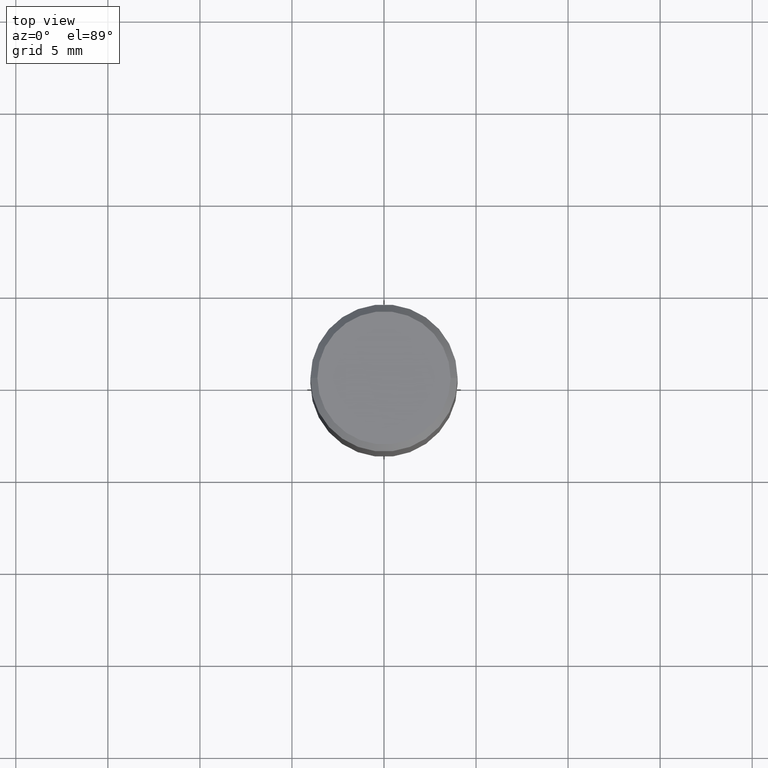
[diagram: clean part render]
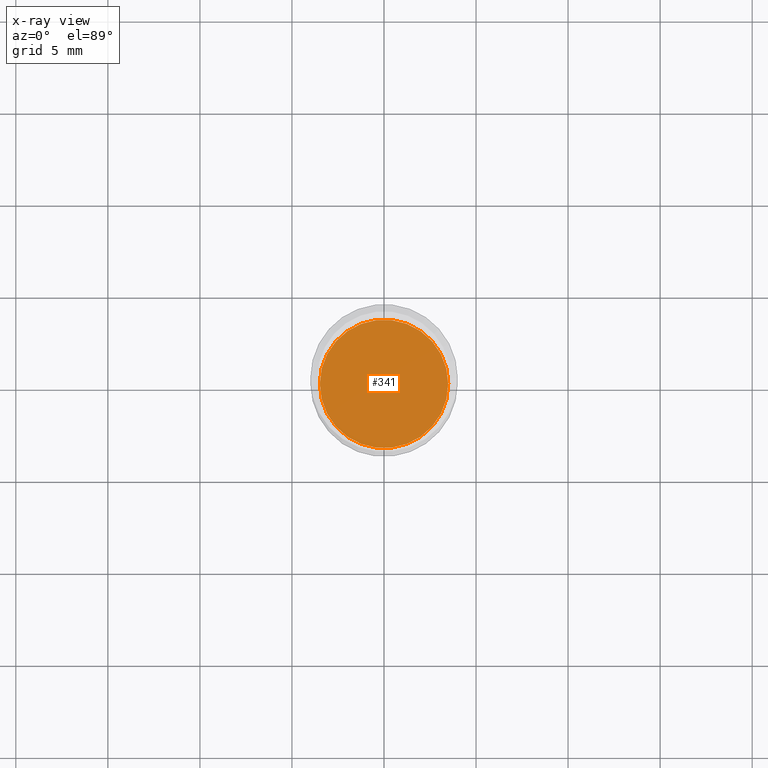
[diagram: x-ray — body ghosted, one internal face saturated and labeled with its STEP entity id]
A machine part, top view, then the same camera in x-ray: the body is ghosted and one INTERNAL B-rep face — a face not visible from any outside direction — is saturated and labeled: STEP entity #341.
In plain terms, the highlighted planar face has unit normal (-0, 0, 1).
Its self-contained STEP definition (entity closure, byte-faithful):
#48 = DIRECTION ( 'NONE',  ( -2.445468806185136597E-29, 3.491481338843145583E-15, 1.000000000000000000 ) ) ;
#63 = DIRECTION ( 'NONE',  ( -2.438088387897960049E-29, 3.491481338843145188E-15, 1.000000000000000000 ) ) ;
#102 = CIRCLE ( 'NONE', #111, 0.1373000000000000054 ) ;
#111 = AXIS2_PLACEMENT_3D ( 'NONE', #308, #48, #380 ) ;
#144 = CARTESIAN_POINT ( 'NONE',  ( 1.838992542251222813E-29, -2.625593966810045497E-15, -0.7520000000000001128 ) ) ;
#153 = AXIS2_PLACEMENT_3D ( 'NONE', #246, #63, #435 ) ;
#183 = EDGE_LOOP ( 'NONE', ( #284, #270 ) ) ;
#200 = EDGE_CURVE ( 'NONE', #438, #404, #102, .T. ) ;
#218 = DIRECTION ( 'NONE',  ( -2.445468806185136597E-29, 3.491481338843145583E-15, 1.000000000000000000 ) ) ;
#233 = CARTESIAN_POINT ( 'NONE',  ( -0.1373000000000000054, -1.647369563437316505E-15, -0.7520000000000001128 ) ) ;
#246 = CARTESIAN_POINT ( 'NONE',  ( 1.838992542251222813E-29, -2.625593966810045497E-15, -0.7520000000000001128 ) ) ;
#264 = AXIS2_PLACEMENT_3D ( 'NONE', #144, #218, #319 ) ;
#270 = ORIENTED_EDGE ( 'NONE', *, *, #356, .F. ) ;
#284 = ORIENTED_EDGE ( 'NONE', *, *, #200, .F. ) ;
#308 = CARTESIAN_POINT ( 'NONE',  ( 1.838992542251222813E-29, -2.625593966810045497E-15, -0.7520000000000001128 ) ) ;
#319 = DIRECTION ( 'NONE',  ( 1.000000000000000000, -6.982962677686266711E-15, 0.000000000000000000 ) ) ;
#341 = ADVANCED_FACE ( 'NONE', ( #462 ), #358, .F. ) ;
#356 = EDGE_CURVE ( 'NONE', #404, #438, #464, .T. ) ;
#358 = PLANE ( 'NONE',  #153 ) ;
#380 = DIRECTION ( 'NONE',  ( 1.000000000000000000, -6.982962677686266711E-15, 0.000000000000000000 ) ) ;
#404 = VERTEX_POINT ( 'NONE', #233 ) ;
#435 = DIRECTION ( 'NONE',  ( 1.000000000000000000, -6.982962677686265922E-15, 4.876176775795935793E-29 ) ) ;
#438 = VERTEX_POINT ( 'NONE', #447 ) ;
#447 = CARTESIAN_POINT ( 'NONE',  ( 0.1373000000000000054, -3.584354742456369967E-15, -0.7520000000000001128 ) ) ;
#462 = FACE_OUTER_BOUND ( 'NONE', #183, .T. ) ;
#464 = CIRCLE ( 'NONE', #264, 0.1373000000000000054 ) ;